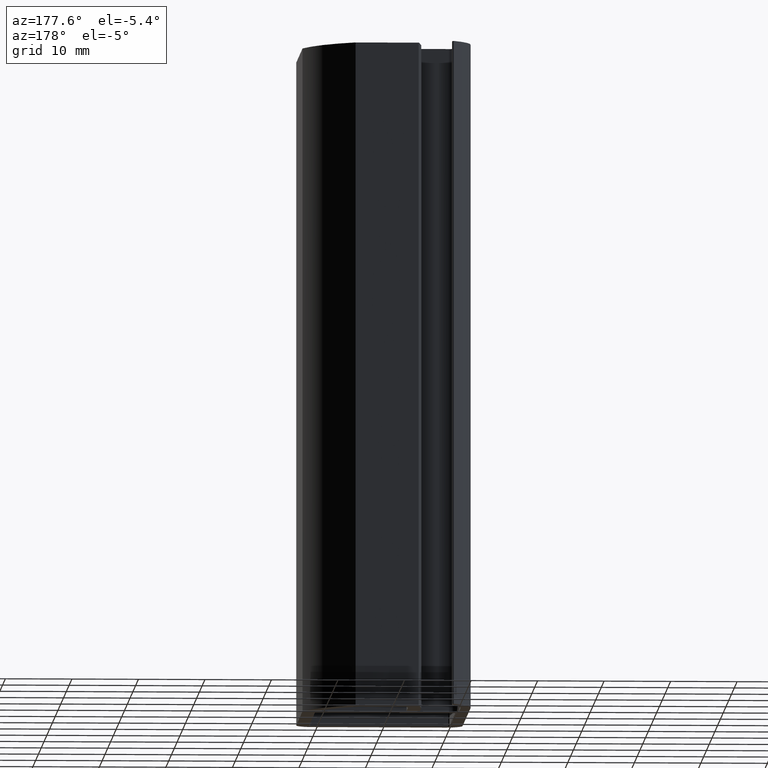
[diagram: clean part render]
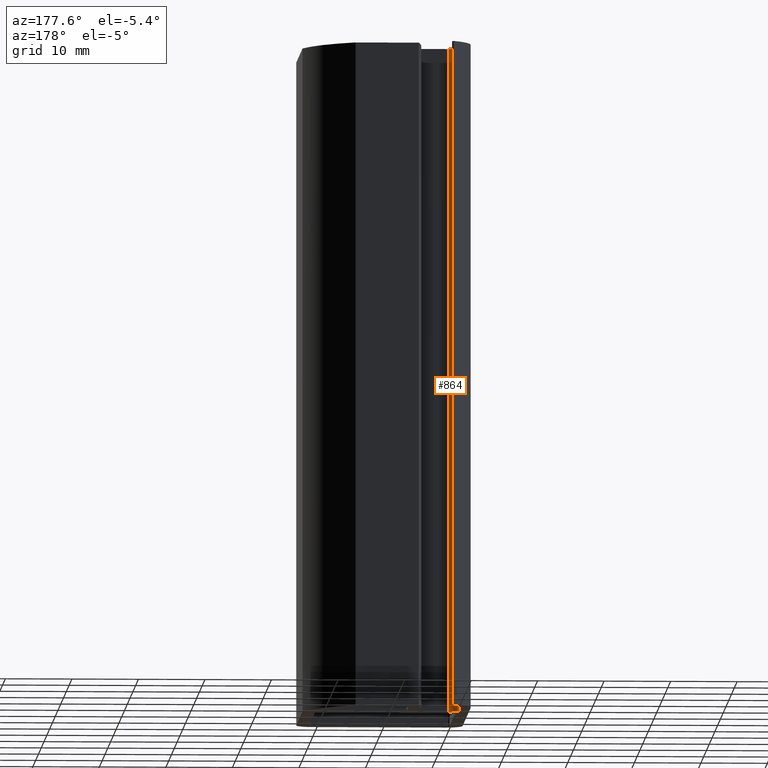
[diagram: same view with one face highlighted and labeled with its STEP entity id]
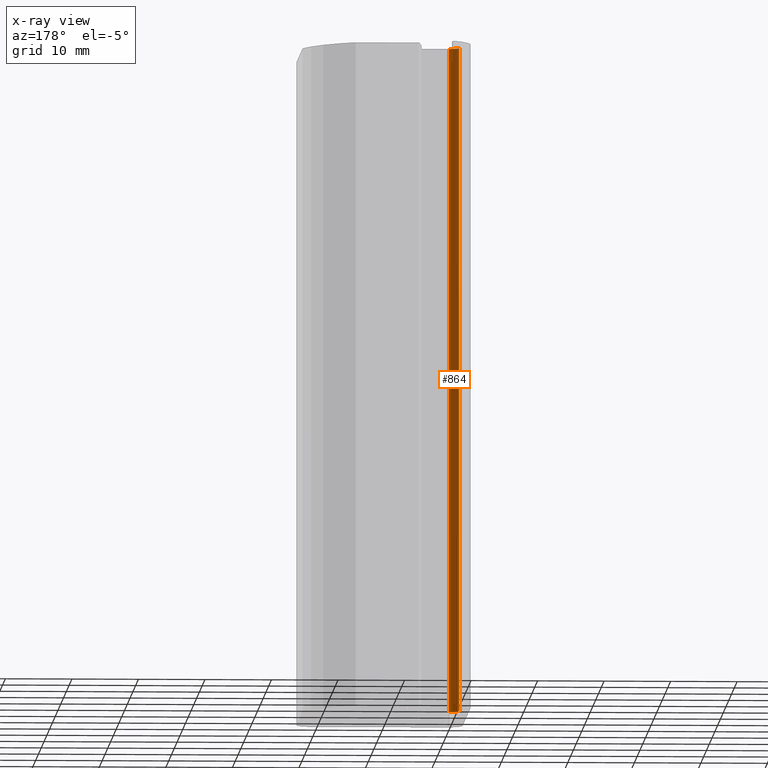
[diagram: x-ray of the same camera — body ghosted, the highlighted face saturated]
A machine part, auxiliary view. The second image highlights one B-rep face of the part: STEP entity #864.
The next image is the same camera in x-ray: the body ghosted, the highlighted face saturated — about 38% of this face is hidden behind the body in this view.
In plain terms, the highlighted cylindrical surface (edge-blend (fillet) strip) has radius 1.5 mm, axis along (0, 0, 1).
Its self-contained STEP definition (entity closure, byte-faithful):
#81=FACE_OUTER_BOUND('',#126,.T.);
#126=EDGE_LOOP('',(#752,#753,#754,#755));
#154=CIRCLE('',#920,1.49999999999957);
#171=CIRCLE('',#970,1.49999999999957);
#253=LINE('',#1478,#337);
#254=LINE('',#1482,#338);
#337=VECTOR('',#1220,10.);
#338=VECTOR('',#1225,10.);
#356=VERTEX_POINT('',#1281);
#389=VERTEX_POINT('',#1346);
#422=VERTEX_POINT('',#1476);
#423=VERTEX_POINT('',#1480);
#481=EDGE_CURVE('',#389,#356,#154,.T.);
#546=EDGE_CURVE('',#389,#422,#253,.T.);
#547=EDGE_CURVE('',#423,#422,#171,.T.);
#548=EDGE_CURVE('',#356,#423,#254,.T.);
#752=ORIENTED_EDGE('',*,*,#546,.T.);
#753=ORIENTED_EDGE('',*,*,#547,.F.);
#754=ORIENTED_EDGE('',*,*,#548,.F.);
#755=ORIENTED_EDGE('',*,*,#481,.F.);
#822=CYLINDRICAL_SURFACE('',#969,1.49999999999957);
#864=ADVANCED_FACE('',(#81),#822,.F.);
#920=AXIS2_PLACEMENT_3D('',#1348,#1074,#1075);
#969=AXIS2_PLACEMENT_3D('',#1479,#1221,#1222);
#970=AXIS2_PLACEMENT_3D('',#1481,#1223,#1224);
#1074=DIRECTION('center_axis',(0.,0.,1.));
#1075=DIRECTION('ref_axis',(1.,-2.96059473233375E-15,0.));
#1220=DIRECTION('',(0.,0.,1.));
#1221=DIRECTION('center_axis',(0.,0.,1.));
#1222=DIRECTION('ref_axis',(1.,-2.96059473233375E-15,0.));
#1223=DIRECTION('center_axis',(0.,0.,-1.));
#1224=DIRECTION('ref_axis',(1.,-2.96059473233375E-15,0.));
#1225=DIRECTION('',(0.,0.,1.));
#1281=CARTESIAN_POINT('',(-9.49999999999995,12.4999999999987,-50.));
#1346=CARTESIAN_POINT('',(-10.9999999999999,13.9999999999987,-50.));
#1348=CARTESIAN_POINT('Origin',(-9.49999999999995,13.9999999999987,-50.));
#1476=CARTESIAN_POINT('',(-10.9999999999999,13.9999999999987,50.));
#1478=CARTESIAN_POINT('',(-10.9999999999999,13.9999999999987,0.));
#1479=CARTESIAN_POINT('Origin',(-9.49999999999995,13.9999999999987,0.));
#1480=CARTESIAN_POINT('',(-9.49999999999995,12.4999999999987,50.));
#1481=CARTESIAN_POINT('Origin',(-9.49999999999995,13.9999999999987,50.));
#1482=CARTESIAN_POINT('',(-9.49999999999995,12.4999999999987,0.));